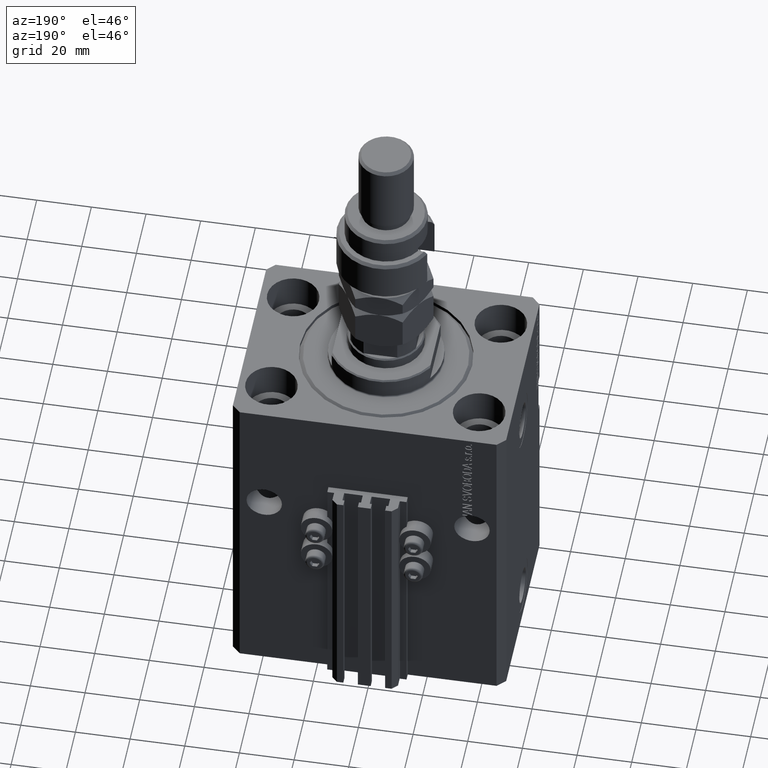
[diagram: clean part render]
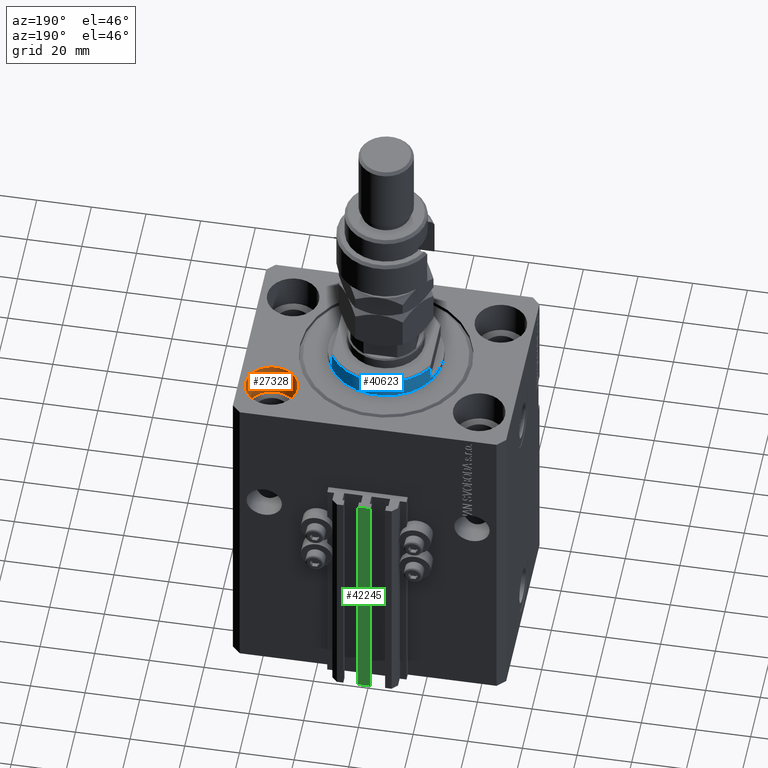
[diagram: same view with three faces highlighted in distinct colors, each labeled with its STEP entity id]
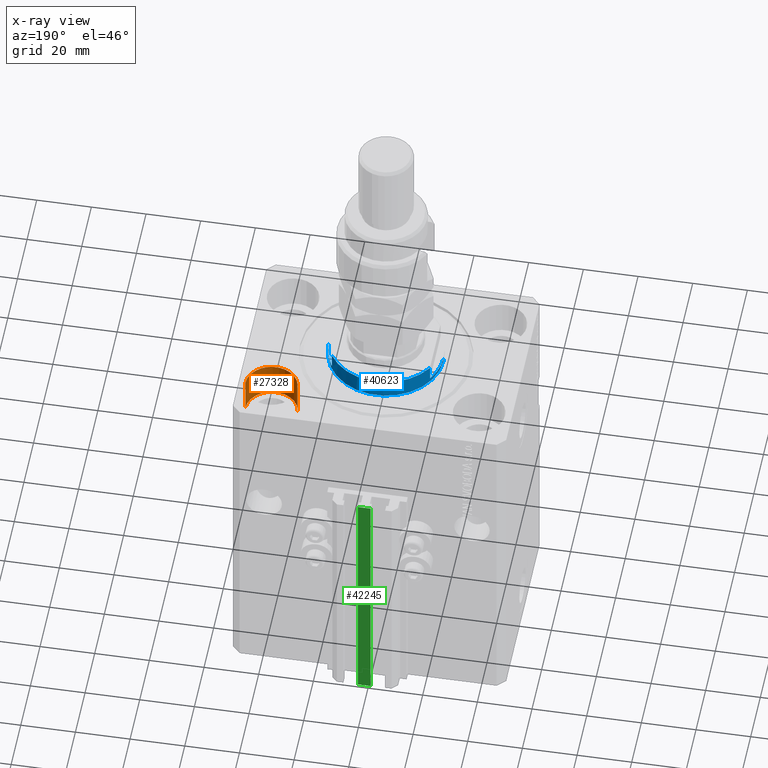
[diagram: x-ray of the same camera — body ghosted, the three highlighted faces saturated]
A machine part, auxiliary view with three faces highlighted in distinct colors.
The next image is the same camera in x-ray (body ghosted, the three faces saturated) — at least one of them is partly hidden behind the body in this view.
Their STEP definitions:

[orange] entity #27328 — the highlighted cylindrical surface (edge-blend (fillet) strip) has radius 9.5 mm, axis along (0, 0, 1).
#173 = DIRECTION ( 'NONE',  ( -0.000000000000000000, -0.000000000000000000, 1.000000000000000000 ) ) ;
#1540 = CIRCLE ( 'NONE', #25458, 9.500000000000001776 ) ;
#2161 = LINE ( 'NONE', #14048, #6882 ) ;
#2440 = EDGE_CURVE ( 'NONE', #41434, #50490, #2161, .T. ) ;
#6066 = FACE_OUTER_BOUND ( 'NONE', #40686, .T. ) ;
#6882 = VECTOR ( 'NONE', #44503, 1000.000000000000000 ) ;
#7965 = AXIS2_PLACEMENT_3D ( 'NONE', #33144, #21800, #29778 ) ;
#10176 = CARTESIAN_POINT ( 'NONE',  ( 28.50000000000000355, 22.50000000000001421, -13.00000000000000000 ) ) ;
#12807 = CARTESIAN_POINT ( 'NONE',  ( 47.50000000000000711, 22.50000000000001421, -13.00000000000000000 ) ) ;
#13452 = ORIENTED_EDGE ( 'NONE', *, *, #40447, .F. ) ;
#13803 = CYLINDRICAL_SURFACE ( 'NONE', #7965, 9.500000000000001776 ) ;
#14048 = CARTESIAN_POINT ( 'NONE',  ( 28.50000000000000355, 22.50000000000001421, -13.00000000000000000 ) ) ;
#14589 = DIRECTION ( 'NONE',  ( 0.000000000000000000, 0.000000000000000000, 1.000000000000000000 ) ) ;
#19062 = EDGE_CURVE ( 'NONE', #50490, #30258, #40199, .T. ) ;
#21800 = DIRECTION ( 'NONE',  ( -0.000000000000000000, -0.000000000000000000, 1.000000000000000000 ) ) ;
#23830 = CARTESIAN_POINT ( 'NONE',  ( 47.50000000000000711, 22.50000000000001421, 0.000000000000000000 ) ) ;
#25458 = AXIS2_PLACEMENT_3D ( 'NONE', #50672, #14589, #50925 ) ;
#26863 = DIRECTION ( 'NONE',  ( 1.000000000000000000, 0.000000000000000000, 0.000000000000000000 ) ) ;
#27328 = ADVANCED_FACE ( 'NONE', ( #6066 ), #13803, .F. ) ;
#28017 = VERTEX_POINT ( 'NONE', #12807 ) ;
#29070 = CARTESIAN_POINT ( 'NONE',  ( 28.50000000000000355, 22.50000000000001421, 0.000000000000000000 ) ) ;
#29778 = DIRECTION ( 'NONE',  ( 1.000000000000000000, 0.000000000000000000, 0.000000000000000000 ) ) ;
#30222 = DIRECTION ( 'NONE',  ( 0.000000000000000000, 0.000000000000000000, 1.000000000000000000 ) ) ;
#30258 = VERTEX_POINT ( 'NONE', #23830 ) ;
#30474 = CARTESIAN_POINT ( 'NONE',  ( 38.00000000000000711, 22.50000000000001421, 0.000000000000000000 ) ) ;
#30574 = VECTOR ( 'NONE', #173, 1000.000000000000000 ) ;
#31911 = CARTESIAN_POINT ( 'NONE',  ( 47.50000000000000711, 22.50000000000001421, -13.00000000000000000 ) ) ;
#32082 = EDGE_CURVE ( 'NONE', #41434, #28017, #1540, .T. ) ;
#33144 = CARTESIAN_POINT ( 'NONE',  ( 38.00000000000000711, 22.50000000000001421, -13.00000000000000000 ) ) ;
#33630 = AXIS2_PLACEMENT_3D ( 'NONE', #30474, #30222, #26863 ) ;
#40199 = CIRCLE ( 'NONE', #33630, 9.500000000000001776 ) ;
#40447 = EDGE_CURVE ( 'NONE', #28017, #30258, #51009, .T. ) ;
#40686 = EDGE_LOOP ( 'NONE', ( #43420, #42467, #50091, #13452 ) ) ;
#41434 = VERTEX_POINT ( 'NONE', #10176 ) ;
#42467 = ORIENTED_EDGE ( 'NONE', *, *, #2440, .T. ) ;
#43420 = ORIENTED_EDGE ( 'NONE', *, *, #32082, .F. ) ;
#44503 = DIRECTION ( 'NONE',  ( -0.000000000000000000, -0.000000000000000000, 1.000000000000000000 ) ) ;
#50091 = ORIENTED_EDGE ( 'NONE', *, *, #19062, .T. ) ;
#50490 = VERTEX_POINT ( 'NONE', #29070 ) ;
#50672 = CARTESIAN_POINT ( 'NONE',  ( 38.00000000000000711, 22.50000000000001421, -13.00000000000000000 ) ) ;
#50925 = DIRECTION ( 'NONE',  ( 1.000000000000000000, 0.000000000000000000, 0.000000000000000000 ) ) ;
#51009 = LINE ( 'NONE', #31911, #30574 ) ;

[blue] entity #40623 — the highlighted cylindrical surface (partial cylindrical patch) has radius 21 mm, axis along (0, 0, -1).
#339 = EDGE_CURVE ( 'NONE', #3463, #25738, #11632, .T. ) ;
#477 = CARTESIAN_POINT ( 'NONE',  ( 21.00000000000000000, 0.000000000000000000, -0.5000000000000004441 ) ) ;
#652 = DIRECTION ( 'NONE',  ( -0.000000000000000000, -0.000000000000000000, -1.000000000000000000 ) ) ;
#660 = CARTESIAN_POINT ( 'NONE',  ( -21.00000000000000000, 2.571758278209441661E-15, -2.000000000000000000 ) ) ;
#1260 = VECTOR ( 'NONE', #29120, 1000.000000000000000 ) ;
#1933 = CIRCLE ( 'NONE', #25850, 21.00000000000000000 ) ;
#3463 = VERTEX_POINT ( 'NONE', #18977 ) ;
#4012 = CARTESIAN_POINT ( 'NONE',  ( 0.000000000000000000, 0.000000000000000000, -0.5000000000000004441 ) ) ;
#4539 = DIRECTION ( 'NONE',  ( 1.000000000000000000, 0.000000000000000000, 0.000000000000000000 ) ) ;
#4801 = AXIS2_PLACEMENT_3D ( 'NONE', #31943, #15703, #31173 ) ;
#5974 = VECTOR ( 'NONE', #12411, 1000.000000000000000 ) ;
#6069 = DIRECTION ( 'NONE',  ( -1.000000000000000000, 0.000000000000000000, 0.000000000000000000 ) ) ;
#6419 = CARTESIAN_POINT ( 'NONE',  ( 21.00000000000000000, 0.000000000000000000, -8.000000000000000000 ) ) ;
#7240 = EDGE_CURVE ( 'NONE', #19959, #21163, #43998, .T. ) ;
#8695 = LINE ( 'NONE', #47378, #19345 ) ;
#9010 = AXIS2_PLACEMENT_3D ( 'NONE', #40649, #21546, #6069 ) ;
#9226 = EDGE_CURVE ( 'NONE', #19959, #35921, #8695, .T. ) ;
#9752 = CARTESIAN_POINT ( 'NONE',  ( -18.00000000000000000, 10.81665382639197048, -2.000000000000000000 ) ) ;
#10381 = EDGE_CURVE ( 'NONE', #38392, #30600, #49494, .T. ) ;
#10602 = VECTOR ( 'NONE', #12243, 1000.000000000000000 ) ;
#10657 = ORIENTED_EDGE ( 'NONE', *, *, #9226, .T. ) ;
#11632 = LINE ( 'NONE', #47730, #5974 ) ;
#11729 = CARTESIAN_POINT ( 'NONE',  ( -18.00000000000000000, 10.81665382639197048, -8.000000000000000000 ) ) ;
#12243 = DIRECTION ( 'NONE',  ( -0.000000000000000000, -0.000000000000000000, 1.000000000000000000 ) ) ;
#12411 = DIRECTION ( 'NONE',  ( -0.000000000000000000, -0.000000000000000000, 1.000000000000000000 ) ) ;
#13494 = ORIENTED_EDGE ( 'NONE', *, *, #21402, .T. ) ;
#13888 = CARTESIAN_POINT ( 'NONE',  ( 0.000000000000000000, 0.000000000000000000, -2.000000000000000000 ) ) ;
#14266 = ORIENTED_EDGE ( 'NONE', *, *, #10381, .F. ) ;
#14331 = ORIENTED_EDGE ( 'NONE', *, *, #45900, .T. ) ;
#15433 = ORIENTED_EDGE ( 'NONE', *, *, #32272, .T. ) ;
#15703 = DIRECTION ( 'NONE',  ( 0.000000000000000000, 0.000000000000000000, -1.000000000000000000 ) ) ;
#16750 = CARTESIAN_POINT ( 'NONE',  ( 21.00000000000000000, 0.000000000000000000, -2.000000000000000000 ) ) ;
#17914 = CIRCLE ( 'NONE', #4801, 21.00000000000000000 ) ;
#18511 = EDGE_CURVE ( 'NONE', #25738, #38392, #17914, .T. ) ;
#18977 = CARTESIAN_POINT ( 'NONE',  ( 18.00000000000000000, 10.81665382639197048, -7.499999999999988454 ) ) ;
#19345 = VECTOR ( 'NONE', #35763, 1000.000000000000000 ) ;
#19959 = VERTEX_POINT ( 'NONE', #660 ) ;
#20531 = CIRCLE ( 'NONE', #9010, 21.00000000000000000 ) ;
#20653 = ORIENTED_EDGE ( 'NONE', *, *, #18511, .F. ) ;
#21163 = VERTEX_POINT ( 'NONE', #9752 ) ;
#21402 = EDGE_CURVE ( 'NONE', #3463, #29989, #20531, .T. ) ;
#21546 = DIRECTION ( 'NONE',  ( 0.000000000000000000, 0.000000000000000000, 1.000000000000000000 ) ) ;
#22091 = CYLINDRICAL_SURFACE ( 'NONE', #28123, 21.00000000000000000 ) ;
#25738 = VERTEX_POINT ( 'NONE', #29953 ) ;
#25850 = AXIS2_PLACEMENT_3D ( 'NONE', #4012, #652, #4539 ) ;
#26712 = CARTESIAN_POINT ( 'NONE',  ( 0.000000000000000000, 0.000000000000000000, -8.000000000000000000 ) ) ;
#28123 = AXIS2_PLACEMENT_3D ( 'NONE', #26712, #33950, #30577 ) ;
#29100 = DIRECTION ( 'NONE',  ( -1.000000000000000000, 0.000000000000000000, 0.000000000000000000 ) ) ;
#29120 = DIRECTION ( 'NONE',  ( -0.000000000000000000, -0.000000000000000000, 1.000000000000000000 ) ) ;
#29953 = CARTESIAN_POINT ( 'NONE',  ( 18.00000000000000000, 10.81665382639197048, -2.000000000000000000 ) ) ;
#29989 = VERTEX_POINT ( 'NONE', #39631 ) ;
#30577 = DIRECTION ( 'NONE',  ( 1.000000000000000000, 0.000000000000000000, 0.000000000000000000 ) ) ;
#30600 = VERTEX_POINT ( 'NONE', #477 ) ;
#30828 = FACE_OUTER_BOUND ( 'NONE', #35270, .T. ) ;
#31173 = DIRECTION ( 'NONE',  ( -1.000000000000000000, 0.000000000000000000, 0.000000000000000000 ) ) ;
#31943 = CARTESIAN_POINT ( 'NONE',  ( 0.000000000000000000, 0.000000000000000000, -2.000000000000000000 ) ) ;
#32088 = LINE ( 'NONE', #11729, #10602 ) ;
#32272 = EDGE_CURVE ( 'NONE', #29989, #21163, #32088, .T. ) ;
#33950 = DIRECTION ( 'NONE',  ( -0.000000000000000000, -0.000000000000000000, 1.000000000000000000 ) ) ;
#35270 = EDGE_LOOP ( 'NONE', ( #38351, #10657, #14331, #14266, #20653, #48945, #13494, #15433 ) ) ;
#35763 = DIRECTION ( 'NONE',  ( -0.000000000000000000, -0.000000000000000000, 1.000000000000000000 ) ) ;
#35921 = VERTEX_POINT ( 'NONE', #47820 ) ;
#38351 = ORIENTED_EDGE ( 'NONE', *, *, #7240, .F. ) ;
#38392 = VERTEX_POINT ( 'NONE', #16750 ) ;
#39041 = AXIS2_PLACEMENT_3D ( 'NONE', #13888, #49214, #29100 ) ;
#39631 = CARTESIAN_POINT ( 'NONE',  ( -18.00000000000000000, 10.81665382639197048, -7.499999999999989342 ) ) ;
#40623 = ADVANCED_FACE ( 'NONE', ( #30828 ), #22091, .T. ) ;
#40649 = CARTESIAN_POINT ( 'NONE',  ( 0.000000000000000000, 0.000000000000000000, -7.499999999999989342 ) ) ;
#43998 = CIRCLE ( 'NONE', #39041, 21.00000000000000000 ) ;
#45900 = EDGE_CURVE ( 'NONE', #35921, #30600, #1933, .T. ) ;
#47378 = CARTESIAN_POINT ( 'NONE',  ( -21.00000000000000000, 2.571758278209441661E-15, -8.000000000000000000 ) ) ;
#47730 = CARTESIAN_POINT ( 'NONE',  ( 18.00000000000000000, 10.81665382639197048, -8.000000000000000000 ) ) ;
#47820 = CARTESIAN_POINT ( 'NONE',  ( -21.00000000000000000, 2.571758278209441661E-15, -0.5000000000000004441 ) ) ;
#48945 = ORIENTED_EDGE ( 'NONE', *, *, #339, .F. ) ;
#49214 = DIRECTION ( 'NONE',  ( 0.000000000000000000, 0.000000000000000000, -1.000000000000000000 ) ) ;
#49494 = LINE ( 'NONE', #6419, #1260 ) ;

[green] entity #42245 — the highlighted planar face has unit normal (0, -1, 0).
#2294 = EDGE_CURVE ( 'NONE', #40549, #50127, #29763, .T. ) ;
#2324 = VECTOR ( 'NONE', #17627, 1000.000000000000000 ) ;
#2386 = LINE ( 'NONE', #10401, #2324 ) ;
#5806 = DIRECTION ( 'NONE',  ( 1.000000000000000000, 0.000000000000000000, 0.000000000000000000 ) ) ;
#9104 = VECTOR ( 'NONE', #31383, 1000.000000000000000 ) ;
#10172 = VECTOR ( 'NONE', #5806, 1000.000000000000000 ) ;
#10401 = CARTESIAN_POINT ( 'NONE',  ( -2.350000000000003642, 45.50000000000000711, -125.0000000000000000 ) ) ;
#11580 = ORIENTED_EDGE ( 'NONE', *, *, #38612, .F. ) ;
#12332 = DIRECTION ( 'NONE',  ( 0.000000000000000000, -0.000000000000000000, -1.000000000000000000 ) ) ;
#12735 = VERTEX_POINT ( 'NONE', #17279 ) ;
#12930 = VECTOR ( 'NONE', #25544, 1000.000000000000000 ) ;
#13653 = EDGE_CURVE ( 'NONE', #48942, #50127, #48742, .T. ) ;
#14753 = CARTESIAN_POINT ( 'NONE',  ( 2.349999999999999645, 45.50000000000000711, -125.0000000000000000 ) ) ;
#15421 = DIRECTION ( 'NONE',  ( 0.000000000000000000, -1.000000000000000000, 0.000000000000000000 ) ) ;
#17279 = CARTESIAN_POINT ( 'NONE',  ( -2.350000000000003642, 45.50000000000000711, -125.0000000000000000 ) ) ;
#17627 = DIRECTION ( 'NONE',  ( 0.000000000000000000, 0.000000000000000000, 1.000000000000000000 ) ) ;
#17655 = CARTESIAN_POINT ( 'NONE',  ( -2.350000000000003642, 45.50000000000000711, -33.00000000000000000 ) ) ;
#20229 = EDGE_CURVE ( 'NONE', #12735, #40549, #2386, .T. ) ;
#20649 = CARTESIAN_POINT ( 'NONE',  ( 2.349999999999999645, 45.50000000000000711, -125.0000000000000000 ) ) ;
#21324 = CARTESIAN_POINT ( 'NONE',  ( -2.350000000000003642, 45.50000000000000711, -33.00000000000000000 ) ) ;
#24095 = ORIENTED_EDGE ( 'NONE', *, *, #13653, .F. ) ;
#25544 = DIRECTION ( 'NONE',  ( 0.000000000000000000, 0.000000000000000000, 1.000000000000000000 ) ) ;
#26782 = ORIENTED_EDGE ( 'NONE', *, *, #2294, .T. ) ;
#28885 = CARTESIAN_POINT ( 'NONE',  ( 2.349999999999999645, 45.50000000000000711, -33.00000000000000000 ) ) ;
#29763 = LINE ( 'NONE', #17655, #10172 ) ;
#31125 = LINE ( 'NONE', #50737, #9104 ) ;
#31383 = DIRECTION ( 'NONE',  ( 1.000000000000000000, 0.000000000000000000, 0.000000000000000000 ) ) ;
#35019 = FACE_OUTER_BOUND ( 'NONE', #47950, .T. ) ;
#38483 = ORIENTED_EDGE ( 'NONE', *, *, #20229, .T. ) ;
#38612 = EDGE_CURVE ( 'NONE', #12735, #48942, #31125, .T. ) ;
#40549 = VERTEX_POINT ( 'NONE', #21324 ) ;
#42245 = ADVANCED_FACE ( 'NONE', ( #35019 ), #43010, .F. ) ;
#43010 = PLANE ( 'NONE',  #50384 ) ;
#47950 = EDGE_LOOP ( 'NONE', ( #26782, #24095, #11580, #38483 ) ) ;
#48742 = LINE ( 'NONE', #20649, #12930 ) ;
#48942 = VERTEX_POINT ( 'NONE', #14753 ) ;
#50127 = VERTEX_POINT ( 'NONE', #28885 ) ;
#50384 = AXIS2_PLACEMENT_3D ( 'NONE', #51012, #15421, #12332 ) ;
#50737 = CARTESIAN_POINT ( 'NONE',  ( -2.350000000000003642, 45.50000000000000711, -125.0000000000000000 ) ) ;
#51012 = CARTESIAN_POINT ( 'NONE',  ( -2.350000000000003642, 45.50000000000000711, -125.0000000000000000 ) ) ;